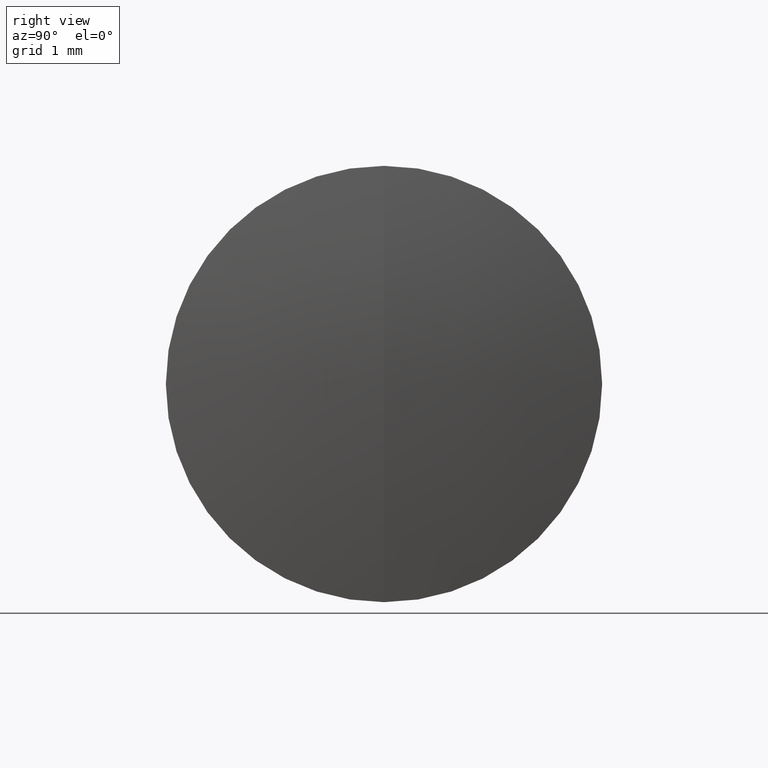
[diagram: clean part render]
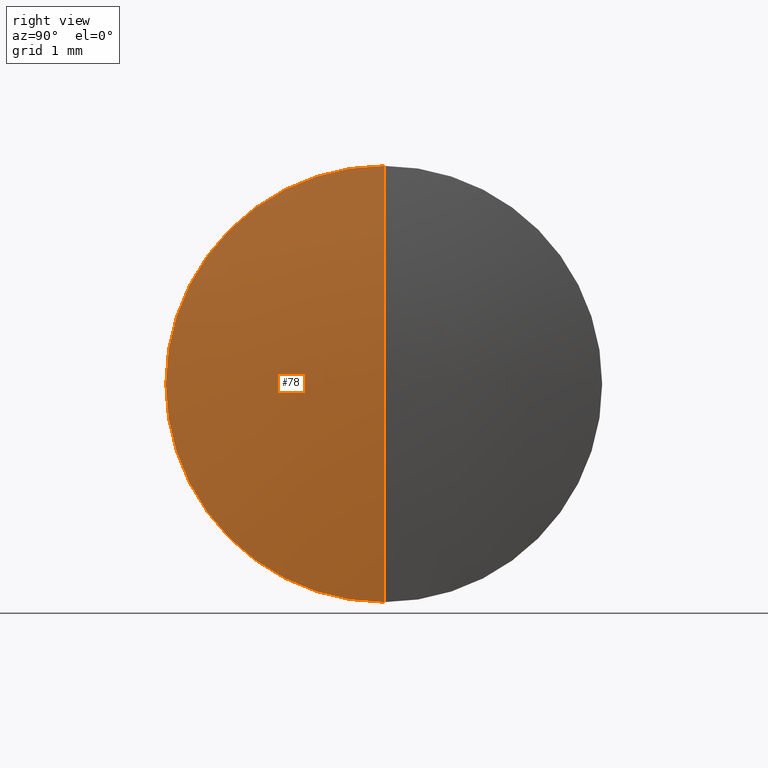
[diagram: same view with one face highlighted and labeled with its STEP entity id]
A machine part, right view. The second image highlights one B-rep face of the part: STEP entity #78.
In plain terms, the highlighted spherical surface has radius 17.1 mm.
Its self-contained STEP definition (entity closure, byte-faithful):
#10 = DIRECTION ( 'NONE',  ( 0.0000000000000000000, 1.000000000000000000, 0.0000000000000000000 ) ) ;
#19 = CARTESIAN_POINT ( 'NONE',  ( 5.778214333061161900, 0.0000000000000000000, 1.047073013270987200E-015 ) ) ;
#29 = CARTESIAN_POINT ( 'NONE',  ( 5.594478696093561100, 0.0000000000000000000, 0.0000000000000000000 ) ) ;
#42 = CIRCLE ( 'NONE', #310, 2.499999999999997800 ) ;
#61 = DIRECTION ( 'NONE',  ( 0.0000000000000000000, -1.224646799147353200E-016, 1.000000000000000000 ) ) ;
#63 = DIRECTION ( 'NONE',  ( 0.0000000000000000000, 0.0000000000000000000, 1.000000000000000000 ) ) ;
#69 = CARTESIAN_POINT ( 'NONE',  ( -11.32178566693884200, 0.0000000000000000000, 0.0000000000000000000 ) ) ;
#78 = ADVANCED_FACE ( 'NONE', ( #112 ), #322, .T. ) ;
#85 = CARTESIAN_POINT ( 'NONE',  ( 5.594478696093561100, 0.0000000000000000000, 2.499999999999997800 ) ) ;
#98 = DIRECTION ( 'NONE',  ( 0.0000000000000000000, 0.0000000000000000000, 1.000000000000000000 ) ) ;
#99 = EDGE_CURVE ( 'NONE', #302, #143, #297, .T. ) ;
#111 = EDGE_CURVE ( 'NONE', #143, #294, #42, .T. ) ;
#112 = FACE_OUTER_BOUND ( 'NONE', #115, .T. ) ;
#115 = EDGE_LOOP ( 'NONE', ( #173, #232, #186 ) ) ;
#119 = EDGE_CURVE ( 'NONE', #302, #294, #188, .T. ) ;
#121 = CARTESIAN_POINT ( 'NONE',  ( 5.594478696093561100, 3.061616997868381200E-016, -2.499999999999997800 ) ) ;
#143 = VERTEX_POINT ( 'NONE', #121 ) ;
#154 = CARTESIAN_POINT ( 'NONE',  ( -11.32178566693884200, 0.0000000000000000000, 0.0000000000000000000 ) ) ;
#173 = ORIENTED_EDGE ( 'NONE', *, *, #99, .F. ) ;
#186 = ORIENTED_EDGE ( 'NONE', *, *, #111, .F. ) ;
#188 = CIRCLE ( 'NONE', #206, 17.10000000000000500 ) ;
#206 = AXIS2_PLACEMENT_3D ( 'NONE', #218, #249, #219 ) ;
#207 = DIRECTION ( 'NONE',  ( -0.0000000000000000000, 1.000000000000000000, 1.224646799147353200E-016 ) ) ;
#218 = CARTESIAN_POINT ( 'NONE',  ( -11.32178566693884200, 0.0000000000000000000, 0.0000000000000000000 ) ) ;
#219 = DIRECTION ( 'NONE',  ( 0.0000000000000000000, 0.0000000000000000000, -1.000000000000000000 ) ) ;
#232 = ORIENTED_EDGE ( 'NONE', *, *, #119, .T. ) ;
#249 = DIRECTION ( 'NONE',  ( 0.0000000000000000000, -1.000000000000000000, 0.0000000000000000000 ) ) ;
#261 = AXIS2_PLACEMENT_3D ( 'NONE', #154, #207, #61 ) ;
#278 = AXIS2_PLACEMENT_3D ( 'NONE', #69, #10, #63 ) ;
#289 = DIRECTION ( 'NONE',  ( -1.000000000000000000, -0.0000000000000000000, -0.0000000000000000000 ) ) ;
#294 = VERTEX_POINT ( 'NONE', #85 ) ;
#297 = CIRCLE ( 'NONE', #261, 17.10000000000000500 ) ;
#302 = VERTEX_POINT ( 'NONE', #19 ) ;
#310 = AXIS2_PLACEMENT_3D ( 'NONE', #29, #289, #98 ) ;
#322 = SPHERICAL_SURFACE ( 'NONE', #278, 17.10000000000000500 ) ;